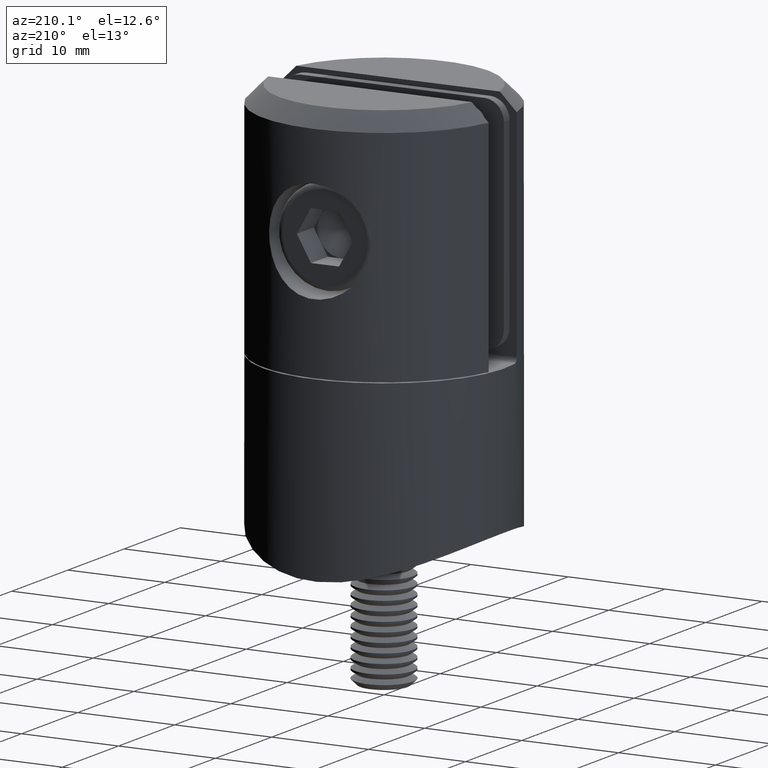
[diagram: clean part render]
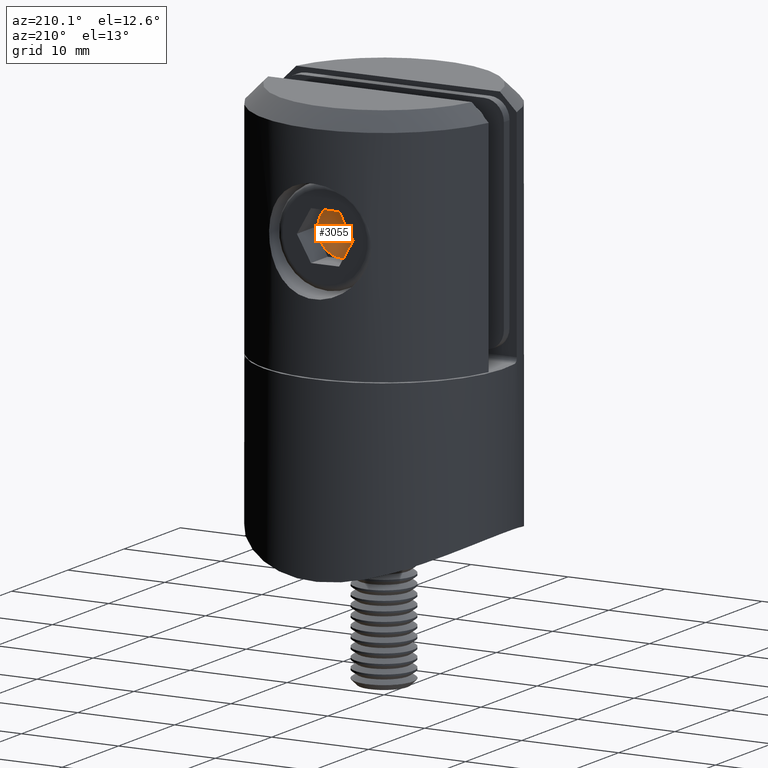
[diagram: same view with one face highlighted and labeled with its STEP entity id]
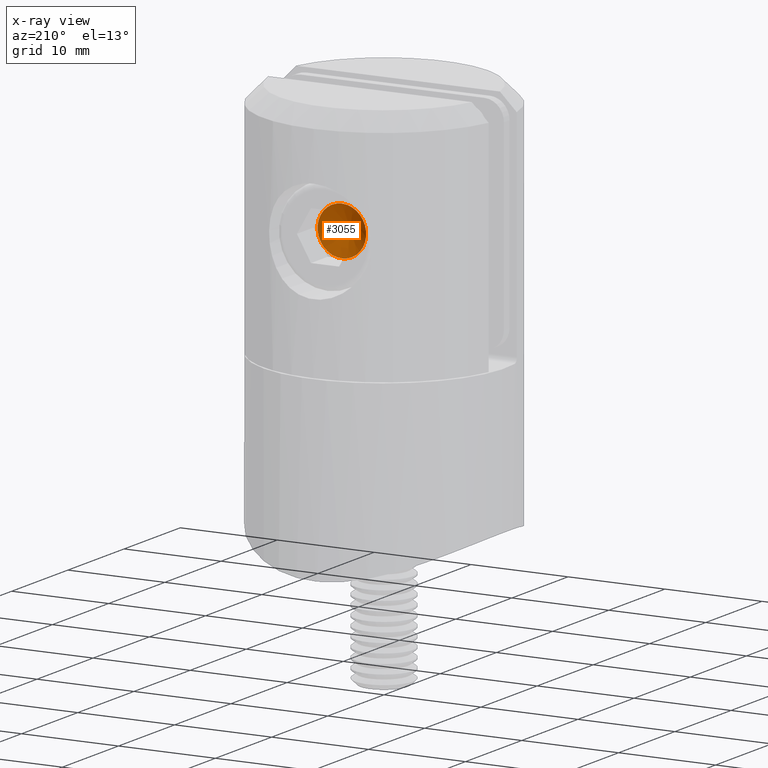
[diagram: x-ray of the same camera — body ghosted, the highlighted face saturated]
A machine part, auxiliary view. The second image highlights one B-rep face of the part: STEP entity #3055.
The next image is the same camera in x-ray: the body ghosted, the highlighted face saturated — about 0% of this face is hidden behind the body in this view.
In plain terms, the highlighted conical surface has half-angle 60 deg.
Its self-contained STEP definition (entity closure, byte-faithful):
#122 = AXIS2_PLACEMENT_3D ( 'NONE', #19944, #10823, #12676 ) ;
#1504 = EDGE_CURVE ( 'NONE', #21111, #4475, #10428, .T. ) ;
#1591 = CIRCLE ( 'NONE', #4152, 2.509999999999999787 ) ;
#1597 = CARTESIAN_POINT ( 'NONE',  ( 3.000000000000000000, 0.000000000000000000, 0.000000000000000000 ) ) ;
#1753 = ORIENTED_EDGE ( 'NONE', *, *, #14129, .T. ) ;
#1767 = CARTESIAN_POINT ( 'NONE',  ( 3.000000000000000000, 2.173723763498937256, 1.254999999999993676 ) ) ;
#1899 = AXIS2_PLACEMENT_3D ( 'NONE', #9638, #15238, #9879 ) ;
#2271 = DIRECTION ( 'NONE',  ( 0.000000000000000000, 0.000000000000000000, 1.000000000000000000 ) ) ;
#2508 = VERTEX_POINT ( 'NONE', #10758 ) ;
#2586 = EDGE_CURVE ( 'NONE', #19812, #6367, #5334, .T. ) ;
#3055 = ADVANCED_FACE ( 'NONE', ( #19075 ), #19631, .F. ) ;
#3263 = DIRECTION ( 'NONE',  ( 0.000000000000000000, 0.000000000000000000, 1.000000000000000000 ) ) ;
#3325 = DIRECTION ( 'NONE',  ( 0.000000000000000000, 0.000000000000000000, 1.000000000000000000 ) ) ;
#3631 = CARTESIAN_POINT ( 'NONE',  ( 3.000000000000000000, 0.000000000000000000, 0.000000000000000000 ) ) ;
#3683 = DIRECTION ( 'NONE',  ( -1.000000000000000000, -0.000000000000000000, -0.000000000000000000 ) ) ;
#3696 = AXIS2_PLACEMENT_3D ( 'NONE', #3631, #16289, #3325 ) ;
#4152 = AXIS2_PLACEMENT_3D ( 'NONE', #20604, #19006, #2271 ) ;
#4327 = AXIS2_PLACEMENT_3D ( 'NONE', #20724, #7861, #13622 ) ;
#4475 = VERTEX_POINT ( 'NONE', #17020 ) ;
#5334 = CIRCLE ( 'NONE', #1899, 2.509999999999999787 ) ;
#5965 = CIRCLE ( 'NONE', #122, 2.509999999999999787 ) ;
#6364 = CIRCLE ( 'NONE', #6870, 2.509999999999999787 ) ;
#6367 = VERTEX_POINT ( 'NONE', #19429 ) ;
#6725 = DIRECTION ( 'NONE',  ( -1.000000000000000000, -0.000000000000000000, -0.000000000000000000 ) ) ;
#6870 = AXIS2_PLACEMENT_3D ( 'NONE', #7479, #3683, #7640 ) ;
#7165 = CARTESIAN_POINT ( 'NONE',  ( 3.000000000000000000, 2.173723763498932815, -1.255000000000000782 ) ) ;
#7190 = EDGE_LOOP ( 'NONE', ( #17355, #11627, #19174, #16337, #7964, #1753 ) ) ;
#7479 = CARTESIAN_POINT ( 'NONE',  ( 3.000000000000000000, 0.000000000000000000, 0.000000000000000000 ) ) ;
#7640 = DIRECTION ( 'NONE',  ( 0.000000000000000000, 0.000000000000000000, 1.000000000000000000 ) ) ;
#7861 = DIRECTION ( 'NONE',  ( -1.000000000000000000, -0.000000000000000000, -0.000000000000000000 ) ) ;
#7964 = ORIENTED_EDGE ( 'NONE', *, *, #2586, .T. ) ;
#9178 = EDGE_CURVE ( 'NONE', #14890, #21111, #6364, .T. ) ;
#9638 = CARTESIAN_POINT ( 'NONE',  ( 3.000000000000000000, 0.000000000000000000, 0.000000000000000000 ) ) ;
#9860 = AXIS2_PLACEMENT_3D ( 'NONE', #1597, #6725, #3263 ) ;
#9879 = DIRECTION ( 'NONE',  ( 0.000000000000000000, 0.000000000000000000, 1.000000000000000000 ) ) ;
#10428 = CIRCLE ( 'NONE', #9860, 2.509999999999999787 ) ;
#10548 = EDGE_CURVE ( 'NONE', #4475, #19812, #5965, .T. ) ;
#10758 = CARTESIAN_POINT ( 'NONE',  ( 3.000000000000000000, 3.380207847158607968E-15, 2.509999999999998899 ) ) ;
#10823 = DIRECTION ( 'NONE',  ( -1.000000000000000000, -0.000000000000000000, -0.000000000000000000 ) ) ;
#11627 = ORIENTED_EDGE ( 'NONE', *, *, #9178, .T. ) ;
#12676 = DIRECTION ( 'NONE',  ( 0.000000000000000000, 0.000000000000000000, 1.000000000000000000 ) ) ;
#13622 = DIRECTION ( 'NONE',  ( 0.000000000000000000, 0.000000000000000000, 1.000000000000000000 ) ) ;
#13769 = EDGE_CURVE ( 'NONE', #2508, #14890, #1591, .T. ) ;
#14129 = EDGE_CURVE ( 'NONE', #6367, #2508, #16463, .T. ) ;
#14890 = VERTEX_POINT ( 'NONE', #1767 ) ;
#15238 = DIRECTION ( 'NONE',  ( -1.000000000000000000, -0.000000000000000000, -0.000000000000000000 ) ) ;
#16289 = DIRECTION ( 'NONE',  ( -1.000000000000000000, -0.000000000000000000, -0.000000000000000000 ) ) ;
#16337 = ORIENTED_EDGE ( 'NONE', *, *, #10548, .T. ) ;
#16463 = CIRCLE ( 'NONE', #3696, 2.509999999999999787 ) ;
#17020 = CARTESIAN_POINT ( 'NONE',  ( 3.000000000000000000, -3.004629197474320429E-15, -2.509999999999999787 ) ) ;
#17355 = ORIENTED_EDGE ( 'NONE', *, *, #13769, .T. ) ;
#18048 = CARTESIAN_POINT ( 'NONE',  ( 3.000000000000000000, -2.173723763498946138, -1.254999999999998783 ) ) ;
#19006 = DIRECTION ( 'NONE',  ( -1.000000000000000000, -0.000000000000000000, -0.000000000000000000 ) ) ;
#19075 = FACE_OUTER_BOUND ( 'NONE', #7190, .T. ) ;
#19174 = ORIENTED_EDGE ( 'NONE', *, *, #1504, .T. ) ;
#19429 = CARTESIAN_POINT ( 'NONE',  ( 3.000000000000000000, -2.173723763498943917, 1.255000000000005222 ) ) ;
#19631 = CONICAL_SURFACE ( 'NONE', #4327, 2.509999999999999787, 1.047197551196591636 ) ;
#19812 = VERTEX_POINT ( 'NONE', #18048 ) ;
#19944 = CARTESIAN_POINT ( 'NONE',  ( 3.000000000000000000, 0.000000000000000000, 0.000000000000000000 ) ) ;
#20604 = CARTESIAN_POINT ( 'NONE',  ( 3.000000000000000000, 0.000000000000000000, 0.000000000000000000 ) ) ;
#20724 = CARTESIAN_POINT ( 'NONE',  ( 3.000000000000000000, 0.000000000000000000, 0.000000000000000000 ) ) ;
#21111 = VERTEX_POINT ( 'NONE', #7165 ) ;